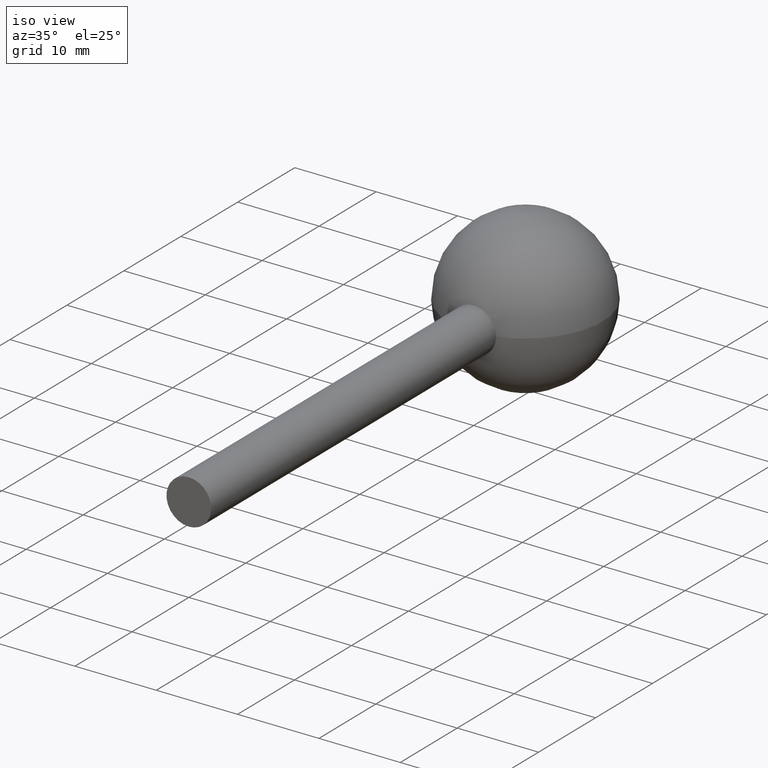
[diagram: clean part render]
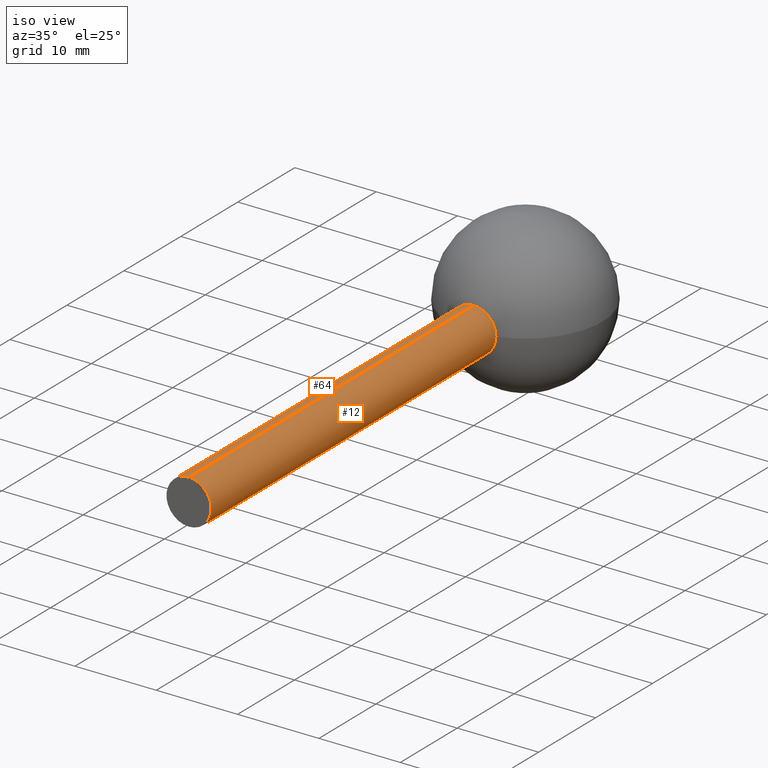
[diagram: same view with one multi-face feature highlighted, each face labeled with its STEP entity id]
A machine part, iso view. The highlighted faces form ONE feature: a constant-radius fillet chain: 2 tangent blend faces with common blend radius 2.75 mm. The faces share edges in the B-rep.
Their STEP definitions:
[1] entity #64 (Cylinder):
#4 = ORIENTED_EDGE ( 'NONE', *, *, #196, .F. ) ;
#6 = ORIENTED_EDGE ( 'NONE', *, *, #31, .T. ) ;
#7 = ORIENTED_EDGE ( 'NONE', *, *, #26, .T. ) ;
#26 = EDGE_CURVE ( 'NONE', #202, #104, #62, .T. ) ;
#28 = EDGE_CURVE ( 'NONE', #220, #175, #212, .T. ) ;
#31 = EDGE_CURVE ( 'NONE', #137, #202, #215, .T. ) ;
#45 = AXIS2_PLACEMENT_3D ( 'NONE', #208, #99, #190 ) ;
#57 = ORIENTED_EDGE ( 'NONE', *, *, #155, .T. ) ;
#62 = CIRCLE ( 'NONE', #108, 2.750000000000004900 ) ;
#64 = ADVANCED_FACE ( 'NONE', ( #151 ), #157, .T. ) ;
#70 = AXIS2_PLACEMENT_3D ( 'NONE', #195, #194, #193 ) ;
#82 = AXIS2_PLACEMENT_3D ( 'NONE', #204, #203, #198 ) ;
#99 = DIRECTION ( 'NONE',  ( -0.0000000000000000000, -1.000000000000000000, -0.0000000000000000000 ) ) ;
#104 = VERTEX_POINT ( 'NONE', #168 ) ;
#105 = EDGE_LOOP ( 'NONE', ( #4, #6, #7, #57, #113 ) ) ;
#108 = AXIS2_PLACEMENT_3D ( 'NONE', #219, #217, #214 ) ;
#113 = ORIENTED_EDGE ( 'NONE', *, *, #28, .F. ) ;
#135 = CARTESIAN_POINT ( 'NONE',  ( 3.367778697655223000E-016, -3.367778697655221000E-016, 2.750000000000000000 ) ) ;
#137 = VERTEX_POINT ( 'NONE', #179 ) ;
#141 = CARTESIAN_POINT ( 'NONE',  ( -2.750000000000007500, 50.00000000000001400, 0.0000000000000000000 ) ) ;
#143 = VECTOR ( 'NONE', #154, 1000.000000000000000 ) ;
#144 = LINE ( 'NONE', #166, #143 ) ;
#148 = VECTOR ( 'NONE', #186, 1000.000000000000000 ) ;
#151 = FACE_OUTER_BOUND ( 'NONE', #105, .T. ) ;
#153 = LINE ( 'NONE', #165, #148 ) ;
#154 = DIRECTION ( 'NONE',  ( -0.0000000000000000000, -1.000000000000000000, -0.0000000000000000000 ) ) ;
#155 = EDGE_CURVE ( 'NONE', #104, #175, #153, .T. ) ;
#157 = CYLINDRICAL_SURFACE ( 'NONE', #45, 2.750000000000002700 ) ;
#158 = CARTESIAN_POINT ( 'NONE',  ( 0.0000000000000000000, -3.367778697655221000E-016, -2.750000000000000000 ) ) ;
#165 = CARTESIAN_POINT ( 'NONE',  ( 0.0000000000000000000, 0.0000000000000000000, -2.750000000000002700 ) ) ;
#166 = CARTESIAN_POINT ( 'NONE',  ( 3.367778697655224500E-016, 0.0000000000000000000, 2.750000000000002700 ) ) ;
#168 = CARTESIAN_POINT ( 'NONE',  ( 0.0000000000000000000, 50.00000000000001400, -2.750000000000004900 ) ) ;
#175 = VERTEX_POINT ( 'NONE', #158 ) ;
#179 = CARTESIAN_POINT ( 'NONE',  ( 3.367778697655227400E-016, 50.00000000000001400, 2.750000000000004900 ) ) ;
#186 = DIRECTION ( 'NONE',  ( -0.0000000000000000000, -1.000000000000000000, -0.0000000000000000000 ) ) ;
#190 = DIRECTION ( 'NONE',  ( 0.0000000000000000000, 0.0000000000000000000, -1.000000000000000000 ) ) ;
#193 = DIRECTION ( 'NONE',  ( 0.0000000000000000000, 0.0000000000000000000, -1.000000000000000000 ) ) ;
#194 = DIRECTION ( 'NONE',  ( -0.0000000000000000000, -1.000000000000000000, -0.0000000000000000000 ) ) ;
#195 = CARTESIAN_POINT ( 'NONE',  ( 0.0000000000000000000, 50.00000000000001400, 0.0000000000000000000 ) ) ;
#196 = EDGE_CURVE ( 'NONE', #137, #220, #144, .T. ) ;
#198 = DIRECTION ( 'NONE',  ( 0.0000000000000000000, 0.0000000000000000000, -1.000000000000000000 ) ) ;
#202 = VERTEX_POINT ( 'NONE', #141 ) ;
#203 = DIRECTION ( 'NONE',  ( -0.0000000000000000000, -1.000000000000000000, -0.0000000000000000000 ) ) ;
#204 = CARTESIAN_POINT ( 'NONE',  ( 0.0000000000000000000, -3.367778697655221000E-016, 0.0000000000000000000 ) ) ;
#208 = CARTESIAN_POINT ( 'NONE',  ( 0.0000000000000000000, 0.0000000000000000000, 0.0000000000000000000 ) ) ;
#212 = CIRCLE ( 'NONE', #82, 2.750000000000000000 ) ;
#214 = DIRECTION ( 'NONE',  ( 0.0000000000000000000, 0.0000000000000000000, -1.000000000000000000 ) ) ;
#215 = CIRCLE ( 'NONE', #70, 2.750000000000004900 ) ;
#217 = DIRECTION ( 'NONE',  ( -0.0000000000000000000, -1.000000000000000000, -0.0000000000000000000 ) ) ;
#219 = CARTESIAN_POINT ( 'NONE',  ( 0.0000000000000000000, 50.00000000000001400, 0.0000000000000000000 ) ) ;
#220 = VERTEX_POINT ( 'NONE', #135 ) ;
[2] entity #12 (Cylinder):
#12 = ADVANCED_FACE ( 'NONE', ( #146 ), #112, .T. ) ;
#19 = CIRCLE ( 'NONE', #68, 2.750000000000004900 ) ;
#35 = AXIS2_PLACEMENT_3D ( 'NONE', #120, #118, #117 ) ;
#52 = AXIS2_PLACEMENT_3D ( 'NONE', #164, #162, #161 ) ;
#67 = ORIENTED_EDGE ( 'NONE', *, *, #155, .F. ) ;
#68 = AXIS2_PLACEMENT_3D ( 'NONE', #127, #126, #125 ) ;
#95 = EDGE_LOOP ( 'NONE', ( #142, #201, #124, #67, #147 ) ) ;
#104 = VERTEX_POINT ( 'NONE', #168 ) ;
#112 = CYLINDRICAL_SURFACE ( 'NONE', #121, 2.750000000000002700 ) ;
#117 = DIRECTION ( 'NONE',  ( 0.0000000000000000000, 0.0000000000000000000, -1.000000000000000000 ) ) ;
#118 = DIRECTION ( 'NONE',  ( -0.0000000000000000000, -1.000000000000000000, -0.0000000000000000000 ) ) ;
#120 = CARTESIAN_POINT ( 'NONE',  ( 0.0000000000000000000, -3.367778697655221000E-016, 0.0000000000000000000 ) ) ;
#121 = AXIS2_PLACEMENT_3D ( 'NONE', #167, #128, #182 ) ;
#122 = CARTESIAN_POINT ( 'NONE',  ( 2.750000000000007500, 50.00000000000001400, -3.367778697655230400E-016 ) ) ;
#124 = ORIENTED_EDGE ( 'NONE', *, *, #216, .F. ) ;
#125 = DIRECTION ( 'NONE',  ( 0.0000000000000000000, 0.0000000000000000000, -1.000000000000000000 ) ) ;
#126 = DIRECTION ( 'NONE',  ( -0.0000000000000000000, -1.000000000000000000, -0.0000000000000000000 ) ) ;
#127 = CARTESIAN_POINT ( 'NONE',  ( 0.0000000000000000000, 50.00000000000001400, 0.0000000000000000000 ) ) ;
#128 = DIRECTION ( 'NONE',  ( -0.0000000000000000000, -1.000000000000000000, -0.0000000000000000000 ) ) ;
#135 = CARTESIAN_POINT ( 'NONE',  ( 3.367778697655223000E-016, -3.367778697655221000E-016, 2.750000000000000000 ) ) ;
#137 = VERTEX_POINT ( 'NONE', #179 ) ;
#142 = ORIENTED_EDGE ( 'NONE', *, *, #210, .T. ) ;
#143 = VECTOR ( 'NONE', #154, 1000.000000000000000 ) ;
#144 = LINE ( 'NONE', #166, #143 ) ;
#146 = FACE_OUTER_BOUND ( 'NONE', #95, .T. ) ;
#147 = ORIENTED_EDGE ( 'NONE', *, *, #150, .T. ) ;
#148 = VECTOR ( 'NONE', #186, 1000.000000000000000 ) ;
#150 = EDGE_CURVE ( 'NONE', #104, #174, #156, .T. ) ;
#153 = LINE ( 'NONE', #165, #148 ) ;
#154 = DIRECTION ( 'NONE',  ( -0.0000000000000000000, -1.000000000000000000, -0.0000000000000000000 ) ) ;
#155 = EDGE_CURVE ( 'NONE', #104, #175, #153, .T. ) ;
#156 = CIRCLE ( 'NONE', #52, 2.750000000000004900 ) ;
#158 = CARTESIAN_POINT ( 'NONE',  ( 0.0000000000000000000, -3.367778697655221000E-016, -2.750000000000000000 ) ) ;
#161 = DIRECTION ( 'NONE',  ( 0.0000000000000000000, 0.0000000000000000000, -1.000000000000000000 ) ) ;
#162 = DIRECTION ( 'NONE',  ( -0.0000000000000000000, -1.000000000000000000, -0.0000000000000000000 ) ) ;
#164 = CARTESIAN_POINT ( 'NONE',  ( 0.0000000000000000000, 50.00000000000001400, 0.0000000000000000000 ) ) ;
#165 = CARTESIAN_POINT ( 'NONE',  ( 0.0000000000000000000, 0.0000000000000000000, -2.750000000000002700 ) ) ;
#166 = CARTESIAN_POINT ( 'NONE',  ( 3.367778697655224500E-016, 0.0000000000000000000, 2.750000000000002700 ) ) ;
#167 = CARTESIAN_POINT ( 'NONE',  ( 0.0000000000000000000, 0.0000000000000000000, 0.0000000000000000000 ) ) ;
#168 = CARTESIAN_POINT ( 'NONE',  ( 0.0000000000000000000, 50.00000000000001400, -2.750000000000004900 ) ) ;
#172 = CIRCLE ( 'NONE', #35, 2.750000000000000000 ) ;
#174 = VERTEX_POINT ( 'NONE', #122 ) ;
#175 = VERTEX_POINT ( 'NONE', #158 ) ;
#179 = CARTESIAN_POINT ( 'NONE',  ( 3.367778697655227400E-016, 50.00000000000001400, 2.750000000000004900 ) ) ;
#182 = DIRECTION ( 'NONE',  ( 0.0000000000000000000, 0.0000000000000000000, -1.000000000000000000 ) ) ;
#186 = DIRECTION ( 'NONE',  ( -0.0000000000000000000, -1.000000000000000000, -0.0000000000000000000 ) ) ;
#196 = EDGE_CURVE ( 'NONE', #137, #220, #144, .T. ) ;
#201 = ORIENTED_EDGE ( 'NONE', *, *, #196, .T. ) ;
#210 = EDGE_CURVE ( 'NONE', #174, #137, #19, .T. ) ;
#216 = EDGE_CURVE ( 'NONE', #175, #220, #172, .T. ) ;
#220 = VERTEX_POINT ( 'NONE', #135 ) ;